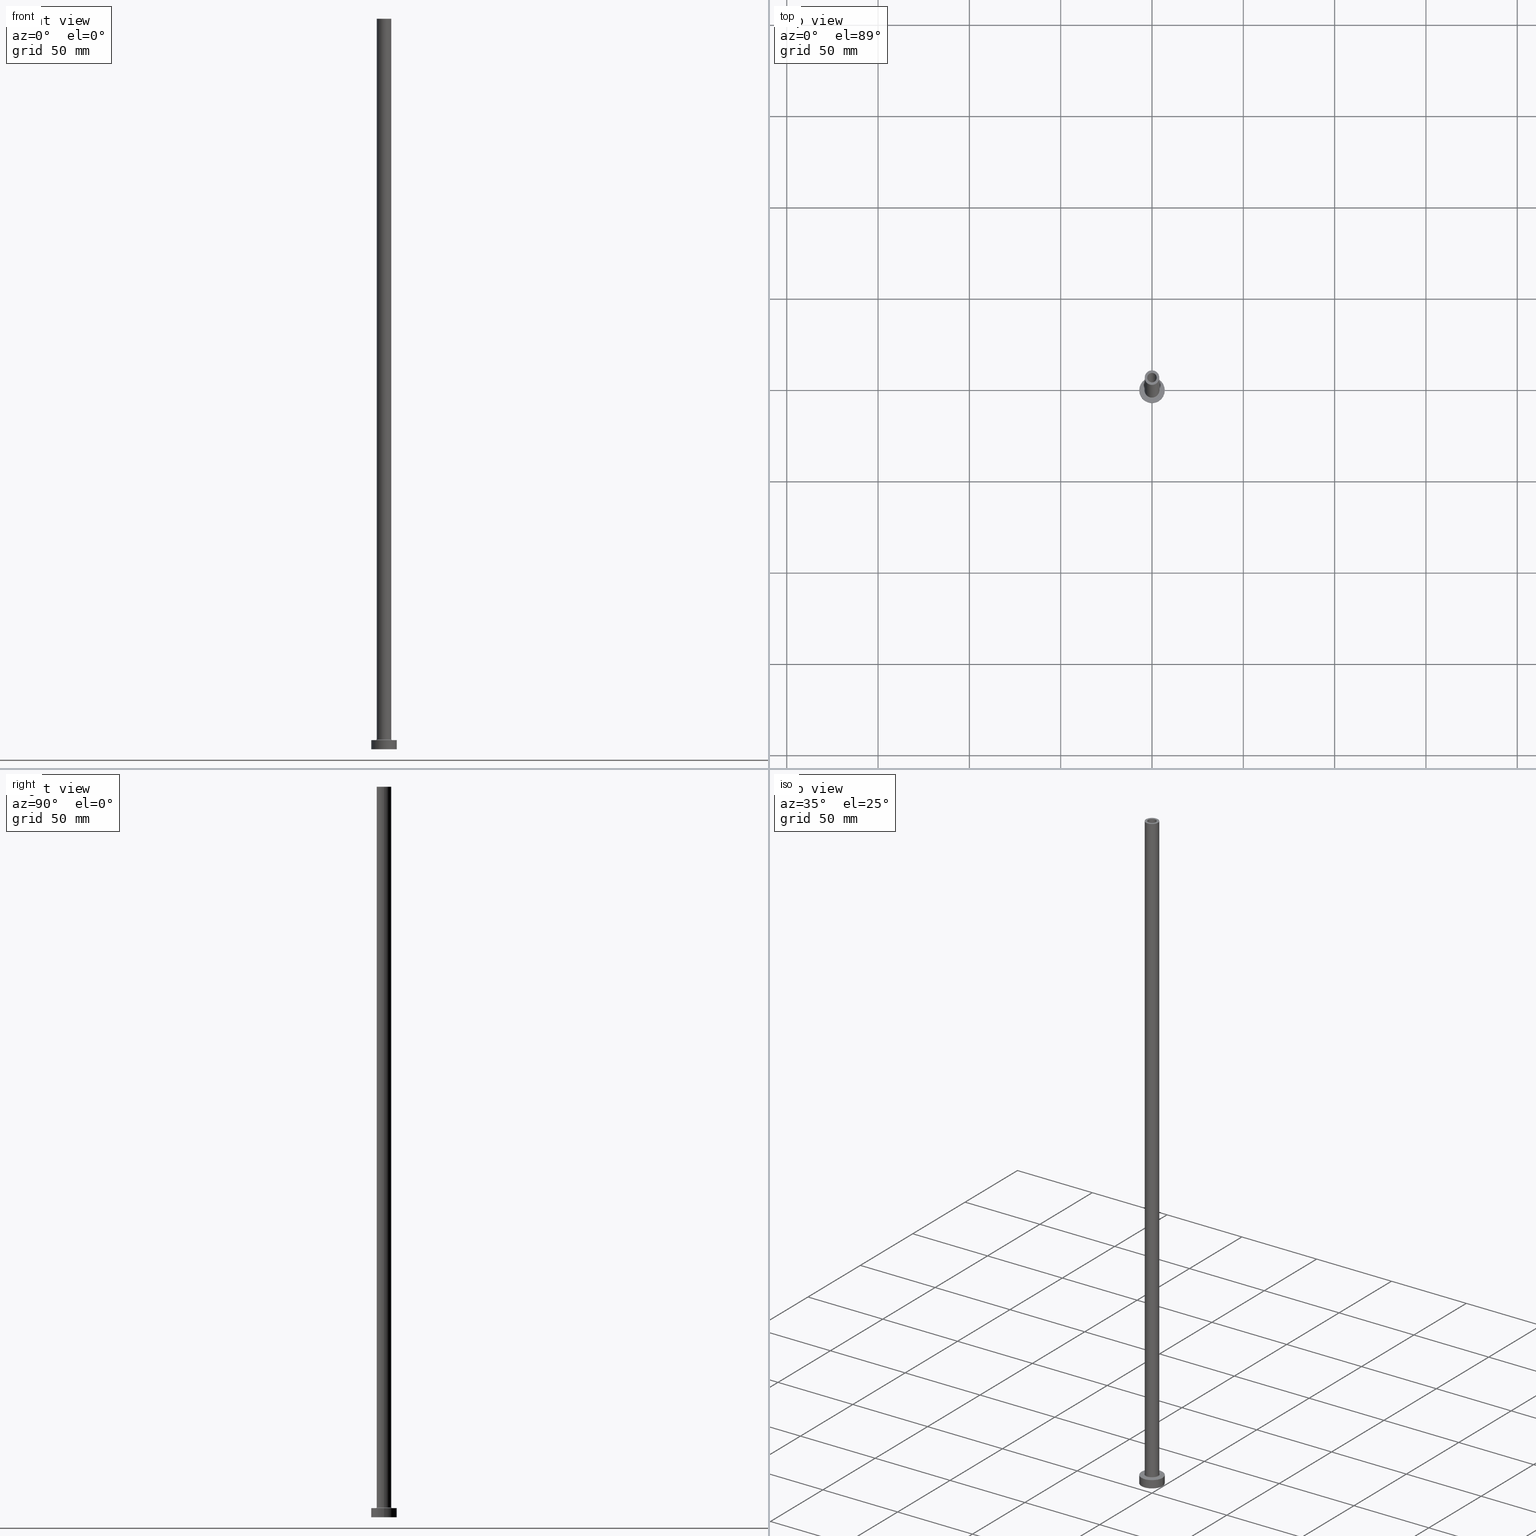
[diagram: canonical four-view strip — front | top / right | iso, engineering-drawing reading convention]
A machine part, canonical four-view strip (front | top / right | iso — engineering-drawing reading convention). The complete STEP part file that produces these views, byte-faithful:
ISO-10303-21;
HEADER;
FILE_DESCRIPTION (( 'STEP AP203' ),
    '1' );
FILE_NAME ('d70d.STEP',
    '2023-02-13T16:29:11',
    ( '' ),
    ( '' ),
    'SwSTEP 2.0',
    'SolidWorks 2019',
    '' );
FILE_SCHEMA (( 'CONFIG_CONTROL_DESIGN' ));
ENDSEC;

DATA;
#1 = EDGE_CURVE ( 'NONE', #461, #55, #158, .T. ) ;
#2 = DIRECTION ( 'NONE',  ( 0.000000000000000000, 0.000000000000000000, 1.000000000000000000 ) ) ;
#3 = LINE ( 'NONE', #32, #255 ) ;
#4 =( GEOMETRIC_REPRESENTATION_CONTEXT ( 3 ) GLOBAL_UNCERTAINTY_ASSIGNED_CONTEXT ( ( #31 ) ) GLOBAL_UNIT_ASSIGNED_CONTEXT ( ( #306, #85, #242 ) ) REPRESENTATION_CONTEXT ( 'NONE', 'WORKASPACE' ) );
#5 = APPLICATION_PROTOCOL_DEFINITION ( 'international standard', 'config_control_design', 1994, #215 ) ;
#6 = DIRECTION ( 'NONE',  ( 0.000000000000000000, 0.000000000000000000, 1.000000000000000000 ) ) ;
#7 = PERSON_AND_ORGANIZATION ( #362, #408 ) ;
#8 = CARTESIAN_POINT ( 'NONE',  ( 0.000000000000000000, 0.000000000000000000, 355.0000000000000568 ) ) ;
#9 = ADVANCED_FACE ( 'NONE', ( #122, #297 ), #295, .F. ) ;
#10 = CARTESIAN_POINT ( 'NONE',  ( -4.500000000000000888, 5.510910596163088569E-16, 5.000000000000002665 ) ) ;
#11 = DATE_AND_TIME ( #51, #123 ) ;
#12 = APPROVAL ( #400, 'NEUR�EN�' ) ;
#13 = APPROVAL_PERSON_ORGANIZATION ( #7, #249, #391 ) ;
#14 = CIRCLE ( 'NONE', #131, 4.000000000000000000 ) ;
#15 = FACE_OUTER_BOUND ( 'NONE', #230, .T. ) ;
#16 = FACE_OUTER_BOUND ( 'NONE', #211, .T. ) ;
#17 = AXIS2_PLACEMENT_3D ( 'NONE', #447, #412, #374 ) ;
#18 = EDGE_LOOP ( 'NONE', ( #243, #134 ) ) ;
#19 = DIRECTION ( 'NONE',  ( -0.000000000000000000, -0.000000000000000000, -1.000000000000000000 ) ) ;
#20 = AXIS2_PLACEMENT_3D ( 'NONE', #225, #113, #159 ) ;
#21 = DIRECTION ( 'NONE',  ( -0.000000000000000000, -0.000000000000000000, -1.000000000000000000 ) ) ;
#22 = DIRECTION ( 'NONE',  ( -0.000000000000000000, -0.000000000000000000, -1.000000000000000000 ) ) ;
#23 = PLANE ( 'NONE',  #254 ) ;
#24 = CARTESIAN_POINT ( 'NONE',  ( 0.000000000000000000, 0.000000000000000000, 355.0000000000000568 ) ) ;
#25 = CYLINDRICAL_SURFACE ( 'NONE', #280, 7.000000000000000000 ) ;
#26 = VERTEX_POINT ( 'NONE', #299 ) ;
#27 = EDGE_CURVE ( 'NONE', #91, #345, #275, .T. ) ;
#28 = ORIENTED_EDGE ( 'NONE', *, *, #44, .F. ) ;
#29 = DATE_AND_TIME ( #429, #180 ) ;
#30 = AXIS2_PLACEMENT_3D ( 'NONE', #405, #365, #50 ) ;
#31 = UNCERTAINTY_MEASURE_WITH_UNIT (LENGTH_MEASURE( 1.000000000000000082E-05 ), #306, 'distance_accuracy_value', 'NONE');
#32 = CARTESIAN_POINT ( 'NONE',  ( 2.600000000000000089, 3.184081677783117698E-16, 400.0000000000000000 ) ) ;
#33 = ADVANCED_FACE ( 'NONE', ( #71 ), #426, .T. ) ;
#34 = APPROVAL_DATE_TIME ( #29, #249 ) ;
#35 = DATE_AND_TIME ( #319, #189 ) ;
#36 = CARTESIAN_POINT ( 'NONE',  ( 0.000000000000000000, 0.000000000000000000, 0.000000000000000000 ) ) ;
#37 = CARTESIAN_POINT ( 'NONE',  ( 0.000000000000000000, 0.000000000000000000, 5.500000000000005329 ) ) ;
#38 = AXIS2_PLACEMENT_3D ( 'NONE', #82, #227, #224 ) ;
#39 = CARTESIAN_POINT ( 'NONE',  ( 0.000000000000000000, 0.000000000000000000, 400.0000000000000000 ) ) ;
#40 = PERSON_AND_ORGANIZATION_ROLE ( 'design_supplier' ) ;
#41 = CARTESIAN_POINT ( 'NONE',  ( -2.600000000000000089, 0.000000000000000000, 400.0000000000000000 ) ) ;
#42 = CLOSED_SHELL ( 'NONE', ( #104, #389, #349, #62, #171, #33, #456, #424, #222, #268, #166, #137, #9, #331 ) ) ;
#43 = AXIS2_PLACEMENT_3D ( 'NONE', #8, #6, #385 ) ;
#44 = EDGE_CURVE ( 'NONE', #26, #289, #187, .T. ) ;
#45 = CARTESIAN_POINT ( 'NONE',  ( 0.000000000000000000, 0.000000000000000000, 5.500000000000005329 ) ) ;
#46 = DIRECTION ( 'NONE',  ( 1.000000000000000000, 0.000000000000000000, 0.000000000000000000 ) ) ;
#47 = AXIS2_PLACEMENT_3D ( 'NONE', #281, #414, #182 ) ;
#48 = EDGE_CURVE ( 'NONE', #170, #309, #142, .T. ) ;
#49 = EDGE_LOOP ( 'NONE', ( #190, #199 ) ) ;
#50 = DIRECTION ( 'NONE',  ( -1.000000000000000000, 0.000000000000000000, 0.000000000000000000 ) ) ;
#51 = CALENDAR_DATE ( 2023, 13, 2 ) ;
#52 = DIRECTION ( 'NONE',  ( 0.000000000000000000, 0.000000000000000000, -1.000000000000000000 ) ) ;
#53 = ORIENTED_EDGE ( 'NONE', *, *, #287, .T. ) ;
#54 = AXIS2_PLACEMENT_3D ( 'NONE', #216, #454, #316 ) ;
#55 = VERTEX_POINT ( 'NONE', #292 ) ;
#56 = DIRECTION ( 'NONE',  ( 1.000000000000000000, 0.000000000000000000, -0.000000000000000000 ) ) ;
#57 = AXIS2_PLACEMENT_3D ( 'NONE', #323, #178, #146 ) ;
#58 = DIRECTION ( 'NONE',  ( -0.000000000000000000, -0.000000000000000000, -1.000000000000000000 ) ) ;
#59 = ORIENTED_EDGE ( 'NONE', *, *, #1, .T. ) ;
#60 = DIRECTION ( 'NONE',  ( 0.000000000000000000, 0.000000000000000000, 1.000000000000000000 ) ) ;
#61 = AXIS2_PLACEMENT_3D ( 'NONE', #278, #312, #409 ) ;
#62 = ADVANCED_FACE ( 'NONE', ( #15 ), #387, .T. ) ;
#63 = CARTESIAN_POINT ( 'NONE',  ( 0.000000000000000000, 0.000000000000000000, 355.0000000000000568 ) ) ;
#64 = DIRECTION ( 'NONE',  ( 0.000000000000000000, 0.000000000000000000, 1.000000000000000000 ) ) ;
#65 = VERTEX_POINT ( 'NONE', #214 ) ;
#66 = ORIENTED_EDGE ( 'NONE', *, *, #27, .F. ) ;
#67 = DATE_TIME_ROLE ( 'classification_date' ) ;
#68 = EDGE_LOOP ( 'NONE', ( #380, #53 ) ) ;
#69 = CIRCLE ( 'NONE', #341, 7.000000000000000000 ) ;
#70 = CARTESIAN_POINT ( 'NONE',  ( 0.000000000000000000, 0.000000000000000000, 362.7781745930520287 ) ) ;
#71 = FACE_OUTER_BOUND ( 'NONE', #314, .T. ) ;
#72 = FACE_OUTER_BOUND ( 'NONE', #444, .T. ) ;
#73 = DIRECTION ( 'NONE',  ( -1.000000000000000000, 0.000000000000000000, 0.000000000000000000 ) ) ;
#74 = APPLICATION_PROTOCOL_DEFINITION ( 'international standard', 'config_control_design', 1994, #427 ) ;
#75 = DIRECTION ( 'NONE',  ( 0.000000000000000000, 0.000000000000000000, -1.000000000000000000 ) ) ;
#76 = VECTOR ( 'NONE', #92, 1000.000000000000000 ) ;
#77 = DIRECTION ( 'NONE',  ( 0.000000000000000000, 0.000000000000000000, -1.000000000000000000 ) ) ;
#78 = CARTESIAN_POINT ( 'NONE',  ( -4.000000000000000000, 0.000000000000000000, 5.500000000000005329 ) ) ;
#79 = EDGE_CURVE ( 'NONE', #318, #355, #219, .T. ) ;
#80 = EDGE_CURVE ( 'NONE', #26, #407, #3, .T. ) ;
#81 = AXIS2_PLACEMENT_3D ( 'NONE', #24, #236, #201 ) ;
#82 = CARTESIAN_POINT ( 'NONE',  ( 0.000000000000000000, 0.000000000000000000, 5.000000000000000000 ) ) ;
#83 = EDGE_LOOP ( 'NONE', ( #194, #209 ) ) ;
#84 = EDGE_LOOP ( 'NONE', ( #371, #202, #98, #347 ) ) ;
#85 =( NAMED_UNIT ( * ) PLANE_ANGLE_UNIT ( ) SI_UNIT ( $, .RADIAN. ) );
#86 = EDGE_CURVE ( 'NONE', #355, #318, #233, .T. ) ;
#87 = TOROIDAL_SURFACE ( 'NONE', #324, 4.500000000000000888, 0.5000000000000000000 ) ;
#88 = DIRECTION ( 'NONE',  ( -1.000000000000000000, 0.000000000000000000, 0.000000000000000000 ) ) ;
#89 = AXIS2_PLACEMENT_3D ( 'NONE', #443, #124, #307 ) ;
#90 = CYLINDRICAL_SURFACE ( 'NONE', #300, 4.000000000000000000 ) ;
#91 = VERTEX_POINT ( 'NONE', #439 ) ;
#92 = DIRECTION ( 'NONE',  ( -0.000000000000000000, -0.000000000000000000, -1.000000000000000000 ) ) ;
#93 = FACE_BOUND ( 'NONE', #418, .T. ) ;
#94 = VERTEX_POINT ( 'NONE', #262 ) ;
#95 = EDGE_CURVE ( 'NONE', #289, #436, #360, .T. ) ;
#96 = EDGE_CURVE ( 'NONE', #461, #237, #394, .T. ) ;
#97 = PLANE ( 'NONE',  #61 ) ;
#98 = ORIENTED_EDGE ( 'NONE', *, *, #95, .T. ) ;
#99 = LOCAL_TIME ( 17, 29, 11.00000000000000000, #259 ) ;
#100 = AXIS2_PLACEMENT_3D ( 'NONE', #425, #64, #169 ) ;
#101 = CARTESIAN_POINT ( 'NONE',  ( -7.000000000000000000, 0.000000000000000000, 5.000000000000000000 ) ) ;
#102 = ORIENTED_EDGE ( 'NONE', *, *, #86, .T. ) ;
#103 = EDGE_LOOP ( 'NONE', ( #165, #445, #451, #136 ) ) ;
#104 = ADVANCED_FACE ( 'NONE', ( #272 ), #361, .F. ) ;
#105 = PERSON_AND_ORGANIZATION ( #362, #408 ) ;
#106 = CC_DESIGN_PERSON_AND_ORGANIZATION_ASSIGNMENT ( #420, #148, ( #163 ) ) ;
#107 = CARTESIAN_POINT ( 'NONE',  ( 0.000000000000000000, 0.000000000000000000, 5.000000000000000000 ) ) ;
#108 = VERTEX_POINT ( 'NONE', #192 ) ;
#109 = VECTOR ( 'NONE', #118, 1000.000000000000000 ) ;
#110 = DATE_AND_TIME ( #260, #422 ) ;
#111 = DIRECTION ( 'NONE',  ( -1.000000000000000000, 0.000000000000000000, 0.000000000000000000 ) ) ;
#112 = PERSON_AND_ORGANIZATION_ROLE ( 'creator' ) ;
#113 = DIRECTION ( 'NONE',  ( -0.000000000000000000, -0.000000000000000000, -1.000000000000000000 ) ) ;
#114 = SHAPE_DEFINITION_REPRESENTATION ( #381, #437 ) ;
#115 = DIRECTION ( 'NONE',  ( 1.000000000000000000, 0.000000000000000000, 0.000000000000000000 ) ) ;
#116 = DIRECTION ( 'NONE',  ( 0.000000000000000000, 0.000000000000000000, -1.000000000000000000 ) ) ;
#117 = MECHANICAL_CONTEXT ( 'NONE', #427, 'mechanical' ) ;
#118 = DIRECTION ( 'NONE',  ( 0.000000000000000000, 0.000000000000000000, -1.000000000000000000 ) ) ;
#119 = DATE_TIME_ROLE ( 'creation_date' ) ;
#120 = DIRECTION ( 'NONE',  ( -0.000000000000000000, -0.000000000000000000, -1.000000000000000000 ) ) ;
#121 = CARTESIAN_POINT ( 'NONE',  ( 2.750000000000000000, 3.367778697655220519E-16, 362.7781745930520287 ) ) ;
#122 = FACE_BOUND ( 'NONE', #49, .T. ) ;
#123 = LOCAL_TIME ( 17, 29, 11.00000000000000000, #366 ) ;
#124 = DIRECTION ( 'NONE',  ( 0.000000000000000000, 0.000000000000000000, 1.000000000000000000 ) ) ;
#125 = APPROVAL ( #217, 'NEUR�EN�' ) ;
#126 = DIRECTION ( 'NONE',  ( 0.000000000000000000, 0.000000000000000000, -1.000000000000000000 ) ) ;
#127 = CIRCLE ( 'NONE', #457, 4.000000000000000000 ) ;
#128 = CARTESIAN_POINT ( 'NONE',  ( 0.000000000000000000, 0.000000000000000000, 400.0000000000000000 ) ) ;
#129 = EDGE_LOOP ( 'NONE', ( #455, #251 ) ) ;
#130 = FACE_OUTER_BOUND ( 'NONE', #129, .T. ) ;
#131 = AXIS2_PLACEMENT_3D ( 'NONE', #240, #452, #164 ) ;
#132 = PRODUCT_DEFINITION ( 'NEZN�M�', '', #163, #285 ) ;
#133 = CARTESIAN_POINT ( 'NONE',  ( 0.000000000000000000, 0.000000000000000000, 5.000000000000000000 ) ) ;
#134 = ORIENTED_EDGE ( 'NONE', *, *, #398, .F. ) ;
#135 = AXIS2_PLACEMENT_3D ( 'NONE', #45, #333, #179 ) ;
#136 = ORIENTED_EDGE ( 'NONE', *, *, #95, .F. ) ;
#137 = ADVANCED_FACE ( 'NONE', ( #460 ), #421, .F. ) ;
#138 = DIRECTION ( 'NONE',  ( -0.000000000000000000, -0.000000000000000000, -1.000000000000000000 ) ) ;
#139 = ORIENTED_EDGE ( 'NONE', *, *, #398, .T. ) ;
#140 = FACE_OUTER_BOUND ( 'NONE', #378, .T. ) ;
#141 = ORIENTED_EDGE ( 'NONE', *, *, #27, .T. ) ;
#142 = CIRCLE ( 'NONE', #396, 4.500000000000000888 ) ;
#143 = ORIENTED_EDGE ( 'NONE', *, *, #411, .T. ) ;
#144 = ORIENTED_EDGE ( 'NONE', *, *, #96, .F. ) ;
#145 = PERSON_AND_ORGANIZATION ( #362, #408 ) ;
#146 = DIRECTION ( 'NONE',  ( 1.000000000000000000, 0.000000000000000000, 0.000000000000000000 ) ) ;
#147 = VECTOR ( 'NONE', #19, 1000.000000000000000 ) ;
#148 = PERSON_AND_ORGANIZATION_ROLE ( 'creator' ) ;
#149 = CARTESIAN_POINT ( 'NONE',  ( 0.000000000000000000, 0.000000000000000000, 400.0000000000000000 ) ) ;
#150 = EDGE_CURVE ( 'NONE', #284, #340, #156, .T. ) ;
#151 = DIRECTION ( 'NONE',  ( -1.000000000000000000, 0.000000000000000000, 0.000000000000000000 ) ) ;
#152 = COORDINATED_UNIVERSAL_TIME_OFFSET ( 1, 0, .AHEAD. ) ;
#153 = DIRECTION ( 'NONE',  ( 1.000000000000000000, 0.000000000000000000, 0.000000000000000000 ) ) ;
#154 = ORIENTED_EDGE ( 'NONE', *, *, #348, .F. ) ;
#155 = AXIS2_PLACEMENT_3D ( 'NONE', #401, #2, #184 ) ;
#156 = CIRCLE ( 'NONE', #89, 7.000000000000000000 ) ;
#157 = LINE ( 'NONE', #121, #109 ) ;
#158 = CIRCLE ( 'NONE', #57, 2.750000000000000000 ) ;
#159 = DIRECTION ( 'NONE',  ( -1.000000000000000000, 0.000000000000000000, 0.000000000000000000 ) ) ;
#160 = APPROVAL_ROLE ( '' ) ;
#161 = DIRECTION ( 'NONE',  ( 0.000000000000000000, 0.000000000000000000, 1.000000000000000000 ) ) ;
#162 = FACE_OUTER_BOUND ( 'NONE', #83, .T. ) ;
#163 = PRODUCT_DEFINITION_FORMATION_WITH_SPECIFIED_SOURCE ( 'LIBOVOLN�', '', #386, .NOT_KNOWN. ) ;
#164 = DIRECTION ( 'NONE',  ( 1.000000000000000000, 0.000000000000000000, 0.000000000000000000 ) ) ;
#165 = ORIENTED_EDGE ( 'NONE', *, *, #226, .T. ) ;
#166 = ADVANCED_FACE ( 'NONE', ( #16 ), #352, .F. ) ;
#167 = LINE ( 'NONE', #410, #76 ) ;
#168 = CIRCLE ( 'NONE', #54, 2.750000000000000000 ) ;
#169 = DIRECTION ( 'NONE',  ( 1.000000000000000000, 0.000000000000000000, 0.000000000000000000 ) ) ;
#170 = VERTEX_POINT ( 'NONE', #258 ) ;
#171 = ADVANCED_FACE ( 'NONE', ( #344 ), #25, .T. ) ;
#172 = ORIENTED_EDGE ( 'NONE', *, *, #411, .F. ) ;
#173 = DIRECTION ( 'NONE',  ( -0.000000000000000000, -0.000000000000000000, -1.000000000000000000 ) ) ;
#174 = CIRCLE ( 'NONE', #17, 0.5000000000000004441 ) ;
#175 = PERSON_AND_ORGANIZATION ( #362, #408 ) ;
#176 = ORIENTED_EDGE ( 'NONE', *, *, #193, .T. ) ;
#177 = ORIENTED_EDGE ( 'NONE', *, *, #235, .F. ) ;
#178 = DIRECTION ( 'NONE',  ( 0.000000000000000000, 0.000000000000000000, 1.000000000000000000 ) ) ;
#179 = DIRECTION ( 'NONE',  ( 1.000000000000000000, 0.000000000000000000, 0.000000000000000000 ) ) ;
#180 = LOCAL_TIME ( 17, 29, 11.00000000000000000, #152 ) ;
#181 = DIRECTION ( 'NONE',  ( 0.000000000000000000, 0.000000000000000000, 1.000000000000000000 ) ) ;
#182 = DIRECTION ( 'NONE',  ( 1.000000000000000000, 0.000000000000000000, 0.000000000000000000 ) ) ;
#183 = PERSON_AND_ORGANIZATION ( #362, #408 ) ;
#184 = DIRECTION ( 'NONE',  ( 1.000000000000000000, 0.000000000000000000, 0.000000000000000000 ) ) ;
#185 = DIRECTION ( 'NONE',  ( 0.000000000000000000, 0.000000000000000000, -1.000000000000000000 ) ) ;
#186 = CARTESIAN_POINT ( 'NONE',  ( 0.000000000000000000, 0.000000000000000000, 400.0000000000000000 ) ) ;
#187 = CIRCLE ( 'NONE', #338, 2.600000000000000089 ) ;
#188 = DIRECTION ( 'NONE',  ( 0.000000000000000000, 0.000000000000000000, 1.000000000000000000 ) ) ;
#189 = LOCAL_TIME ( 17, 29, 11.00000000000000000, #354 ) ;
#190 = ORIENTED_EDGE ( 'NONE', *, *, #303, .T. ) ;
#191 = ORIENTED_EDGE ( 'NONE', *, *, #431, .T. ) ;
#192 = CARTESIAN_POINT ( 'NONE',  ( -4.000000000000000000, 0.000000000000000000, 400.0000000000000000 ) ) ;
#193 = EDGE_CURVE ( 'NONE', #345, #91, #14, .T. ) ;
#194 = ORIENTED_EDGE ( 'NONE', *, *, #232, .T. ) ;
#195 = EDGE_CURVE ( 'NONE', #65, #237, #168, .T. ) ;
#196 = AXIS2_PLACEMENT_3D ( 'NONE', #339, #22, #450 ) ;
#197 = AXIS2_PLACEMENT_3D ( 'NONE', #304, #218, #253 ) ;
#198 = LINE ( 'NONE', #446, #147 ) ;
#199 = ORIENTED_EDGE ( 'NONE', *, *, #286, .T. ) ;
#200 = CARTESIAN_POINT ( 'NONE',  ( -2.600000000000000089, 0.000000000000000000, 355.0000000000000568 ) ) ;
#201 = DIRECTION ( 'NONE',  ( 1.000000000000000000, 0.000000000000000000, 0.000000000000000000 ) ) ;
#202 = ORIENTED_EDGE ( 'NONE', *, *, #44, .T. ) ;
#203 = DIRECTION ( 'NONE',  ( 1.000000000000000000, 0.000000000000000000, 0.000000000000000000 ) ) ;
#204 = DIRECTION ( 'NONE',  ( 1.000000000000000000, 0.000000000000000000, 0.000000000000000000 ) ) ;
#205 = LINE ( 'NONE', #101, #271 ) ;
#206 = CC_DESIGN_PERSON_AND_ORGANIZATION_ASSIGNMENT ( #175, #327, ( #386 ) ) ;
#207 = DIRECTION ( 'NONE',  ( -1.000000000000000000, 0.000000000000000000, 0.000000000000000000 ) ) ;
#208 = ORIENTED_EDGE ( 'NONE', *, *, #238, .T. ) ;
#209 = ORIENTED_EDGE ( 'NONE', *, *, #150, .T. ) ;
#210 = CC_DESIGN_APPROVAL ( #12, ( #163 ) ) ;
#211 = EDGE_LOOP ( 'NONE', ( #177, #66, #143, #320 ) ) ;
#212 = DIRECTION ( 'NONE',  ( 0.000000000000000000, 0.000000000000000000, -1.000000000000000000 ) ) ;
#213 = SECURITY_CLASSIFICATION_LEVEL ( 'unclassified' ) ;
#214 = CARTESIAN_POINT ( 'NONE',  ( 2.750000000000000000, 3.367778697655220519E-16, 0.000000000000000000 ) ) ;
#215 = APPLICATION_CONTEXT ( 'configuration controlled 3d designs of mechanical parts and assemblies' ) ;
#216 = CARTESIAN_POINT ( 'NONE',  ( 0.000000000000000000, 0.000000000000000000, 0.000000000000000000 ) ) ;
#217 = APPROVAL_STATUS ( 'not_yet_approved' ) ;
#218 = DIRECTION ( 'NONE',  ( 0.000000000000000000, 0.000000000000000000, 1.000000000000000000 ) ) ;
#219 = CIRCLE ( 'NONE', #265, 7.000000000000000000 ) ;
#220 = APPROVAL_DATE_TIME ( #35, #125 ) ;
#221 = DIRECTION ( 'NONE',  ( 0.000000000000000000, 0.000000000000000000, 1.000000000000000000 ) ) ;
#222 = ADVANCED_FACE ( 'NONE', ( #357 ), #90, .T. ) ;
#223 = APPROVAL_PERSON_ORGANIZATION ( #367, #12, #160 ) ;
#224 = DIRECTION ( 'NONE',  ( 1.000000000000000000, 0.000000000000000000, -0.000000000000000000 ) ) ;
#225 = CARTESIAN_POINT ( 'NONE',  ( 0.000000000000000000, 0.000000000000000000, 5.000000000000000000 ) ) ;
#226 = EDGE_CURVE ( 'NONE', #289, #26, #393, .T. ) ;
#227 = DIRECTION ( 'NONE',  ( 0.000000000000000000, 0.000000000000000000, 1.000000000000000000 ) ) ;
#228 = CC_DESIGN_PERSON_AND_ORGANIZATION_ASSIGNMENT ( #183, #326, ( #375 ) ) ;
#229 = LINE ( 'NONE', #310, #317 ) ;
#230 = EDGE_LOOP ( 'NONE', ( #247, #191, #141, #283 ) ) ;
#231 = CIRCLE ( 'NONE', #384, 2.750000000000000000 ) ;
#232 = EDGE_CURVE ( 'NONE', #340, #284, #69, .T. ) ;
#233 = CIRCLE ( 'NONE', #197, 7.000000000000000000 ) ;
#234 = CARTESIAN_POINT ( 'NONE',  ( 4.500000000000000888, 0.000000000000000000, 5.500000000000005329 ) ) ;
#235 = EDGE_CURVE ( 'NONE', #345, #309, #174, .T. ) ;
#236 = DIRECTION ( 'NONE',  ( 0.000000000000000000, 0.000000000000000000, 1.000000000000000000 ) ) ;
#237 = VERTEX_POINT ( 'NONE', #346 ) ;
#238 = EDGE_CURVE ( 'NONE', #340, #355, #205, .T. ) ;
#239 = FACE_OUTER_BOUND ( 'NONE', #377, .T. ) ;
#240 = CARTESIAN_POINT ( 'NONE',  ( 0.000000000000000000, 0.000000000000000000, 5.500000000000005329 ) ) ;
#241 = EDGE_LOOP ( 'NONE', ( #154, #248 ) ) ;
#242 =( NAMED_UNIT ( * ) SI_UNIT ( $, .STERADIAN. ) SOLID_ANGLE_UNIT ( ) );
#243 = ORIENTED_EDGE ( 'NONE', *, *, #1, .F. ) ;
#244 = CIRCLE ( 'NONE', #432, 0.5000000000000004441 ) ;
#245 = DIRECTION ( 'NONE',  ( 0.000000000000000000, 0.000000000000000000, 1.000000000000000000 ) ) ;
#246 = ORIENTED_EDGE ( 'NONE', *, *, #329, .F. ) ;
#247 = ORIENTED_EDGE ( 'NONE', *, *, #342, .F. ) ;
#248 = ORIENTED_EDGE ( 'NONE', *, *, #195, .F. ) ;
#249 = APPROVAL ( #250, 'NEUR�EN�' ) ;
#250 = APPROVAL_STATUS ( 'not_yet_approved' ) ;
#251 = ORIENTED_EDGE ( 'NONE', *, *, #79, .F. ) ;
#252 = COORDINATED_UNIVERSAL_TIME_OFFSET ( 1, 0, .AHEAD. ) ;
#253 = DIRECTION ( 'NONE',  ( 1.000000000000000000, 0.000000000000000000, 0.000000000000000000 ) ) ;
#254 = AXIS2_PLACEMENT_3D ( 'NONE', #337, #161, #56 ) ;
#255 = VECTOR ( 'NONE', #75, 1000.000000000000000 ) ;
#256 = EDGE_CURVE ( 'NONE', #108, #94, #330, .T. ) ;
#257 = ORIENTED_EDGE ( 'NONE', *, *, #96, .T. ) ;
#258 = CARTESIAN_POINT ( 'NONE',  ( 4.500000000000000888, 0.000000000000000000, 5.000000000000002665 ) ) ;
#259 = COORDINATED_UNIVERSAL_TIME_OFFSET ( 1, 0, .AHEAD. ) ;
#260 = CALENDAR_DATE ( 2023, 13, 2 ) ;
#261 = CARTESIAN_POINT ( 'NONE',  ( 0.000000000000000000, 0.000000000000000000, 400.0000000000000000 ) ) ;
#262 = CARTESIAN_POINT ( 'NONE',  ( 4.000000000000000000, 4.898587196589411843E-16, 400.0000000000000000 ) ) ;
#263 = AXIS2_PLACEMENT_3D ( 'NONE', #438, #116, #151 ) ;
#264 = CC_DESIGN_DATE_AND_TIME_ASSIGNMENT ( #110, #119, ( #132 ) ) ;
#265 = AXIS2_PLACEMENT_3D ( 'NONE', #36, #221, #153 ) ;
#266 = CARTESIAN_POINT ( 'NONE',  ( 7.000000000000000000, 8.572527594031473190E-16, 0.000000000000000000 ) ) ;
#267 = CC_DESIGN_PERSON_AND_ORGANIZATION_ASSIGNMENT ( #291, #112, ( #132 ) ) ;
#268 = ADVANCED_FACE ( 'NONE', ( #93, #140 ), #97, .T. ) ;
#269 = CARTESIAN_POINT ( 'NONE',  ( 0.000000000000000000, 0.000000000000000000, 355.0000000000000568 ) ) ;
#270 = EDGE_LOOP ( 'NONE', ( #246, #139, #257, #315 ) ) ;
#271 = VECTOR ( 'NONE', #173, 1000.000000000000000 ) ;
#272 = FACE_OUTER_BOUND ( 'NONE', #103, .T. ) ;
#273 = VECTOR ( 'NONE', #185, 1000.000000000000000 ) ;
#274 = MANIFOLD_SOLID_BREP ( 'Odebrat vysunut�m4', #42 ) ;
#275 = CIRCLE ( 'NONE', #135, 4.000000000000000000 ) ;
#276 = ORIENTED_EDGE ( 'NONE', *, *, #193, .F. ) ;
#277 = CC_DESIGN_APPROVAL ( #125, ( #132 ) ) ;
#278 = CARTESIAN_POINT ( 'NONE',  ( 0.000000000000000000, 0.000000000000000000, 400.0000000000000000 ) ) ;
#279 = ORIENTED_EDGE ( 'NONE', *, *, #238, .F. ) ;
#280 = AXIS2_PLACEMENT_3D ( 'NONE', #390, #58, #73 ) ;
#281 = CARTESIAN_POINT ( 'NONE',  ( 0.000000000000000000, 0.000000000000000000, 400.0000000000000000 ) ) ;
#282 = EDGE_LOOP ( 'NONE', ( #413, #453, #288, #176 ) ) ;
#283 = ORIENTED_EDGE ( 'NONE', *, *, #368, .F. ) ;
#284 = VERTEX_POINT ( 'NONE', #343 ) ;
#285 = DESIGN_CONTEXT ( 'detailed design', #215, 'design' ) ;
#286 = EDGE_CURVE ( 'NONE', #407, #436, #305, .T. ) ;
#287 = EDGE_CURVE ( 'NONE', #309, #170, #448, .T. ) ;
#288 = ORIENTED_EDGE ( 'NONE', *, *, #368, .T. ) ;
#289 = VERTEX_POINT ( 'NONE', #376 ) ;
#290 = ORIENTED_EDGE ( 'NONE', *, *, #235, .T. ) ;
#291 = PERSON_AND_ORGANIZATION ( #362, #408 ) ;
#292 = CARTESIAN_POINT ( 'NONE',  ( 2.750000000000000000, 3.367778697655220519E-16, 355.0000000000000568 ) ) ;
#293 = ORIENTED_EDGE ( 'NONE', *, *, #79, .T. ) ;
#294 = APPROVAL_ROLE ( '' ) ;
#295 = PLANE ( 'NONE',  #43 ) ;
#296 = APPROVAL_PERSON_ORGANIZATION ( #145, #125, #294 ) ;
#297 = FACE_OUTER_BOUND ( 'NONE', #18, .T. ) ;
#298 = CALENDAR_DATE ( 2023, 13, 2 ) ;
#299 = CARTESIAN_POINT ( 'NONE',  ( 2.600000000000000089, 3.184081677783117698E-16, 400.0000000000000000 ) ) ;
#300 = AXIS2_PLACEMENT_3D ( 'NONE', #39, #138, #207 ) ;
#301 = DIRECTION ( 'NONE',  ( 1.000000000000000000, 0.000000000000000000, 0.000000000000000000 ) ) ;
#302 = ORIENTED_EDGE ( 'NONE', *, *, #379, .T. ) ;
#303 = EDGE_CURVE ( 'NONE', #436, #407, #440, .T. ) ;
#304 = CARTESIAN_POINT ( 'NONE',  ( 0.000000000000000000, 0.000000000000000000, 0.000000000000000000 ) ) ;
#305 = CIRCLE ( 'NONE', #81, 2.600000000000000089 ) ;
#306 =( LENGTH_UNIT ( ) NAMED_UNIT ( * ) SI_UNIT ( .MILLI., .METRE. ) );
#307 = DIRECTION ( 'NONE',  ( 1.000000000000000000, 0.000000000000000000, 0.000000000000000000 ) ) ;
#308 = AXIS2_PLACEMENT_3D ( 'NONE', #70, #212, #353 ) ;
#309 = VERTEX_POINT ( 'NONE', #10 ) ;
#310 = CARTESIAN_POINT ( 'NONE',  ( -4.000000000000000000, 0.000000000000000000, 400.0000000000000000 ) ) ;
#311 = AXIS2_PLACEMENT_3D ( 'NONE', #128, #60, #204 ) ;
#312 = DIRECTION ( 'NONE',  ( 0.000000000000000000, 0.000000000000000000, 1.000000000000000000 ) ) ;
#313 = PLANE ( 'NONE',  #38 ) ;
#314 = EDGE_LOOP ( 'NONE', ( #458, #419, #208, #102 ) ) ;
#315 = ORIENTED_EDGE ( 'NONE', *, *, #348, .T. ) ;
#316 = DIRECTION ( 'NONE',  ( 1.000000000000000000, 0.000000000000000000, 0.000000000000000000 ) ) ;
#317 = VECTOR ( 'NONE', #21, 1000.000000000000000 ) ;
#318 = VERTEX_POINT ( 'NONE', #266 ) ;
#319 = CALENDAR_DATE ( 2023, 13, 2 ) ;
#320 = ORIENTED_EDGE ( 'NONE', *, *, #287, .F. ) ;
#321 = ORIENTED_EDGE ( 'NONE', *, *, #256, .T. ) ;
#322 = DIRECTION ( 'NONE',  ( -0.000000000000000000, -0.000000000000000000, -1.000000000000000000 ) ) ;
#323 = CARTESIAN_POINT ( 'NONE',  ( 0.000000000000000000, 0.000000000000000000, 355.0000000000000568 ) ) ;
#324 = AXIS2_PLACEMENT_3D ( 'NONE', #37, #181, #325 ) ;
#325 = DIRECTION ( 'NONE',  ( 1.000000000000000000, 0.000000000000000000, 0.000000000000000000 ) ) ;
#326 = PERSON_AND_ORGANIZATION_ROLE ( 'classification_officer' ) ;
#327 = PERSON_AND_ORGANIZATION_ROLE ( 'design_owner' ) ;
#328 = CARTESIAN_POINT ( 'NONE',  ( -2.750000000000000000, 0.000000000000000000, 362.7781745930520287 ) ) ;
#329 = EDGE_CURVE ( 'NONE', #55, #65, #157, .T. ) ;
#330 = CIRCLE ( 'NONE', #311, 4.000000000000000000 ) ;
#331 = ADVANCED_FACE ( 'NONE', ( #332 ), #428, .F. ) ;
#332 = FACE_OUTER_BOUND ( 'NONE', #84, .T. ) ;
#333 = DIRECTION ( 'NONE',  ( 0.000000000000000000, 0.000000000000000000, 1.000000000000000000 ) ) ;
#334 = ORIENTED_EDGE ( 'NONE', *, *, #150, .F. ) ;
#335 = FACE_BOUND ( 'NONE', #241, .T. ) ;
#336 = ORIENTED_EDGE ( 'NONE', *, *, #329, .T. ) ;
#337 = CARTESIAN_POINT ( 'NONE',  ( 0.000000000000000000, 0.000000000000000000, 0.000000000000000000 ) ) ;
#338 = AXIS2_PLACEMENT_3D ( 'NONE', #261, #430, #392 ) ;
#339 = CARTESIAN_POINT ( 'NONE',  ( 0.000000000000000000, 0.000000000000000000, 5.000000000000000000 ) ) ;
#340 = VERTEX_POINT ( 'NONE', #434 ) ;
#341 = AXIS2_PLACEMENT_3D ( 'NONE', #133, #245, #416 ) ;
#342 = EDGE_CURVE ( 'NONE', #94, #108, #127, .T. ) ;
#343 = CARTESIAN_POINT ( 'NONE',  ( 7.000000000000000000, 8.572527594031473190E-16, 5.000000000000000000 ) ) ;
#344 = FACE_OUTER_BOUND ( 'NONE', #382, .T. ) ;
#345 = VERTEX_POINT ( 'NONE', #78 ) ;
#346 = CARTESIAN_POINT ( 'NONE',  ( -2.750000000000000000, 0.000000000000000000, 0.000000000000000000 ) ) ;
#347 = ORIENTED_EDGE ( 'NONE', *, *, #286, .F. ) ;
#348 = EDGE_CURVE ( 'NONE', #237, #65, #231, .T. ) ;
#349 = ADVANCED_FACE ( 'NONE', ( #72 ), #87, .F. ) ;
#350 = AXIS2_PLACEMENT_3D ( 'NONE', #269, #372, #203 ) ;
#351 = ORIENTED_EDGE ( 'NONE', *, *, #226, .F. ) ;
#352 = TOROIDAL_SURFACE ( 'NONE', #100, 4.500000000000000888, 0.5000000000000000000 ) ;
#353 = DIRECTION ( 'NONE',  ( -1.000000000000000000, 0.000000000000000000, 0.000000000000000000 ) ) ;
#354 = COORDINATED_UNIVERSAL_TIME_OFFSET ( 1, 0, .AHEAD. ) ;
#355 = VERTEX_POINT ( 'NONE', #356 ) ;
#356 = CARTESIAN_POINT ( 'NONE',  ( -7.000000000000000000, 0.000000000000000000, 0.000000000000000000 ) ) ;
#357 = FACE_OUTER_BOUND ( 'NONE', #282, .T. ) ;
#358 = APPROVAL_DATE_TIME ( #11, #12 ) ;
#359 = CC_DESIGN_SECURITY_CLASSIFICATION ( #375, ( #163 ) ) ;
#360 = LINE ( 'NONE', #41, #273 ) ;
#361 = CYLINDRICAL_SURFACE ( 'NONE', #30, 2.600000000000000089 ) ;
#362 = PERSON ( 'NEUR�EN�', 'NEUR�EN�', 'NEUR�EN�', ('NEUR�EN�'), ('NEUR�EN�'), ('NEUR�EN�') ) ;
#363 = AXIS2_PLACEMENT_3D ( 'NONE', #406, #126, #88 ) ;
#364 = CARTESIAN_POINT ( 'NONE',  ( -2.750000000000000000, 0.000000000000000000, 355.0000000000000568 ) ) ;
#365 = DIRECTION ( 'NONE',  ( 0.000000000000000000, 0.000000000000000000, -1.000000000000000000 ) ) ;
#366 = COORDINATED_UNIVERSAL_TIME_OFFSET ( 1, 0, .AHEAD. ) ;
#367 = PERSON_AND_ORGANIZATION ( #362, #408 ) ;
#368 = EDGE_CURVE ( 'NONE', #108, #345, #229, .T. ) ;
#369 = PRODUCT_RELATED_PRODUCT_CATEGORY ( 'detail', '', ( #386 ) ) ;
#370 = CIRCLE ( 'NONE', #350, 2.750000000000000000 ) ;
#371 = ORIENTED_EDGE ( 'NONE', *, *, #80, .F. ) ;
#372 = DIRECTION ( 'NONE',  ( 0.000000000000000000, 0.000000000000000000, 1.000000000000000000 ) ) ;
#373 = FACE_BOUND ( 'NONE', #68, .T. ) ;
#374 = DIRECTION ( 'NONE',  ( -1.000000000000000000, 1.224646799147351482E-16, 0.000000000000000000 ) ) ;
#375 = SECURITY_CLASSIFICATION ( '', '', #213 ) ;
#376 = CARTESIAN_POINT ( 'NONE',  ( -2.600000000000000089, 0.000000000000000000, 400.0000000000000000 ) ) ;
#377 = EDGE_LOOP ( 'NONE', ( #59, #336, #459, #144 ) ) ;
#378 = EDGE_LOOP ( 'NONE', ( #321, #415 ) ) ;
#379 = EDGE_CURVE ( 'NONE', #284, #318, #198, .T. ) ;
#380 = ORIENTED_EDGE ( 'NONE', *, *, #48, .T. ) ;
#381 = PRODUCT_DEFINITION_SHAPE ( 'NONE', 'NONE',  #132 ) ;
#382 = EDGE_LOOP ( 'NONE', ( #334, #302, #293, #279 ) ) ;
#383 = DATE_AND_TIME ( #298, #99 ) ;
#384 = AXIS2_PLACEMENT_3D ( 'NONE', #435, #120, #388 ) ;
#385 = DIRECTION ( 'NONE',  ( 1.000000000000000000, 0.000000000000000000, -0.000000000000000000 ) ) ;
#386 = PRODUCT ( 'd70d', 'd70d', '', ( #117 ) ) ;
#387 = CYLINDRICAL_SURFACE ( 'NONE', #433, 4.000000000000000000 ) ;
#388 = DIRECTION ( 'NONE',  ( 1.000000000000000000, 0.000000000000000000, 0.000000000000000000 ) ) ;
#389 = ADVANCED_FACE ( 'NONE', ( #239 ), #442, .F. ) ;
#390 = CARTESIAN_POINT ( 'NONE',  ( 0.000000000000000000, 0.000000000000000000, 5.000000000000000000 ) ) ;
#391 = APPROVAL_ROLE ( '' ) ;
#392 = DIRECTION ( 'NONE',  ( 1.000000000000000000, 0.000000000000000000, 0.000000000000000000 ) ) ;
#393 = CIRCLE ( 'NONE', #47, 2.600000000000000089 ) ;
#394 = LINE ( 'NONE', #328, #417 ) ;
#395 = DIRECTION ( 'NONE',  ( 0.000000000000000000, 0.000000000000000000, 1.000000000000000000 ) ) ;
#396 = AXIS2_PLACEMENT_3D ( 'NONE', #107, #423, #115 ) ;
#397 = CC_DESIGN_PERSON_AND_ORGANIZATION_ASSIGNMENT ( #105, #40, ( #163 ) ) ;
#398 = EDGE_CURVE ( 'NONE', #55, #461, #370, .T. ) ;
#399 = CC_DESIGN_DATE_AND_TIME_ASSIGNMENT ( #383, #67, ( #375 ) ) ;
#400 = APPROVAL_STATUS ( 'not_yet_approved' ) ;
#401 = CARTESIAN_POINT ( 'NONE',  ( 0.000000000000000000, 0.000000000000000000, 0.000000000000000000 ) ) ;
#402 = AXIS2_PLACEMENT_3D ( 'NONE', #63, #188, #46 ) ;
#403 = CARTESIAN_POINT ( 'NONE',  ( 2.600000000000000089, 3.184081677783117698E-16, 355.0000000000000568 ) ) ;
#404 = ORIENTED_EDGE ( 'NONE', *, *, #48, .F. ) ;
#405 = CARTESIAN_POINT ( 'NONE',  ( 0.000000000000000000, 0.000000000000000000, 400.0000000000000000 ) ) ;
#406 = CARTESIAN_POINT ( 'NONE',  ( 0.000000000000000000, 0.000000000000000000, 362.7781745930520287 ) ) ;
#407 = VERTEX_POINT ( 'NONE', #403 ) ;
#408 = ORGANIZATION ( 'NEUR�EN�', 'NEUR�EN�', '' ) ;
#409 = DIRECTION ( 'NONE',  ( 1.000000000000000000, 0.000000000000000000, -0.000000000000000000 ) ) ;
#410 = CARTESIAN_POINT ( 'NONE',  ( 4.000000000000000000, 4.898587196589411843E-16, 400.0000000000000000 ) ) ;
#411 = EDGE_CURVE ( 'NONE', #91, #170, #244, .T. ) ;
#412 = DIRECTION ( 'NONE',  ( 1.224646799147353207E-16, 1.000000000000000000, -0.000000000000000000 ) ) ;
#413 = ORIENTED_EDGE ( 'NONE', *, *, #431, .F. ) ;
#414 = DIRECTION ( 'NONE',  ( 0.000000000000000000, 0.000000000000000000, 1.000000000000000000 ) ) ;
#415 = ORIENTED_EDGE ( 'NONE', *, *, #342, .T. ) ;
#416 = DIRECTION ( 'NONE',  ( 1.000000000000000000, 0.000000000000000000, 0.000000000000000000 ) ) ;
#417 = VECTOR ( 'NONE', #77, 1000.000000000000000 ) ;
#418 = EDGE_LOOP ( 'NONE', ( #351, #28 ) ) ;
#419 = ORIENTED_EDGE ( 'NONE', *, *, #232, .F. ) ;
#420 = PERSON_AND_ORGANIZATION ( #362, #408 ) ;
#421 = CYLINDRICAL_SURFACE ( 'NONE', #308, 2.750000000000000000 ) ;
#422 = LOCAL_TIME ( 17, 29, 11.00000000000000000, #252 ) ;
#423 = DIRECTION ( 'NONE',  ( -0.000000000000000000, -0.000000000000000000, -1.000000000000000000 ) ) ;
#424 = ADVANCED_FACE ( 'NONE', ( #335, #130 ), #23, .F. ) ;
#425 = CARTESIAN_POINT ( 'NONE',  ( 0.000000000000000000, 0.000000000000000000, 5.500000000000005329 ) ) ;
#426 = CYLINDRICAL_SURFACE ( 'NONE', #20, 7.000000000000000000 ) ;
#427 = APPLICATION_CONTEXT ( 'configuration controlled 3d designs of mechanical parts and assemblies' ) ;
#428 = CYLINDRICAL_SURFACE ( 'NONE', #263, 2.600000000000000089 ) ;
#429 = CALENDAR_DATE ( 2023, 13, 2 ) ;
#430 = DIRECTION ( 'NONE',  ( 0.000000000000000000, 0.000000000000000000, 1.000000000000000000 ) ) ;
#431 = EDGE_CURVE ( 'NONE', #94, #91, #167, .T. ) ;
#432 = AXIS2_PLACEMENT_3D ( 'NONE', #234, #449, #52 ) ;
#433 = AXIS2_PLACEMENT_3D ( 'NONE', #149, #322, #111 ) ;
#434 = CARTESIAN_POINT ( 'NONE',  ( -7.000000000000000000, 0.000000000000000000, 5.000000000000000000 ) ) ;
#435 = CARTESIAN_POINT ( 'NONE',  ( 0.000000000000000000, 0.000000000000000000, 0.000000000000000000 ) ) ;
#436 = VERTEX_POINT ( 'NONE', #200 ) ;
#437 = ADVANCED_BREP_SHAPE_REPRESENTATION ( 'd70d', ( #274, #155 ), #4 ) ;
#438 = CARTESIAN_POINT ( 'NONE',  ( 0.000000000000000000, 0.000000000000000000, 400.0000000000000000 ) ) ;
#439 = CARTESIAN_POINT ( 'NONE',  ( 4.000000000000000000, 4.898587196589411843E-16, 5.500000000000005329 ) ) ;
#440 = CIRCLE ( 'NONE', #402, 2.600000000000000089 ) ;
#441 = CC_DESIGN_APPROVAL ( #249, ( #375 ) ) ;
#442 = CYLINDRICAL_SURFACE ( 'NONE', #363, 2.750000000000000000 ) ;
#443 = CARTESIAN_POINT ( 'NONE',  ( 0.000000000000000000, 0.000000000000000000, 5.000000000000000000 ) ) ;
#444 = EDGE_LOOP ( 'NONE', ( #276, #290, #404, #172 ) ) ;
#445 = ORIENTED_EDGE ( 'NONE', *, *, #80, .T. ) ;
#446 = CARTESIAN_POINT ( 'NONE',  ( 7.000000000000000000, 8.572527594031473190E-16, 5.000000000000000000 ) ) ;
#447 = CARTESIAN_POINT ( 'NONE',  ( -4.500000000000000888, 5.510910596163089556E-16, 5.500000000000005329 ) ) ;
#448 = CIRCLE ( 'NONE', #196, 4.500000000000000888 ) ;
#449 = DIRECTION ( 'NONE',  ( 0.000000000000000000, -1.000000000000000000, 0.000000000000000000 ) ) ;
#450 = DIRECTION ( 'NONE',  ( 1.000000000000000000, 0.000000000000000000, 0.000000000000000000 ) ) ;
#451 = ORIENTED_EDGE ( 'NONE', *, *, #303, .F. ) ;
#452 = DIRECTION ( 'NONE',  ( 0.000000000000000000, 0.000000000000000000, 1.000000000000000000 ) ) ;
#453 = ORIENTED_EDGE ( 'NONE', *, *, #256, .F. ) ;
#454 = DIRECTION ( 'NONE',  ( -0.000000000000000000, -0.000000000000000000, -1.000000000000000000 ) ) ;
#455 = ORIENTED_EDGE ( 'NONE', *, *, #86, .F. ) ;
#456 = ADVANCED_FACE ( 'NONE', ( #373, #162 ), #313, .T. ) ;
#457 = AXIS2_PLACEMENT_3D ( 'NONE', #186, #395, #301 ) ;
#458 = ORIENTED_EDGE ( 'NONE', *, *, #379, .F. ) ;
#459 = ORIENTED_EDGE ( 'NONE', *, *, #195, .T. ) ;
#460 = FACE_OUTER_BOUND ( 'NONE', #270, .T. ) ;
#461 = VERTEX_POINT ( 'NONE', #364 ) ;
ENDSEC;
END-ISO-10303-21;
